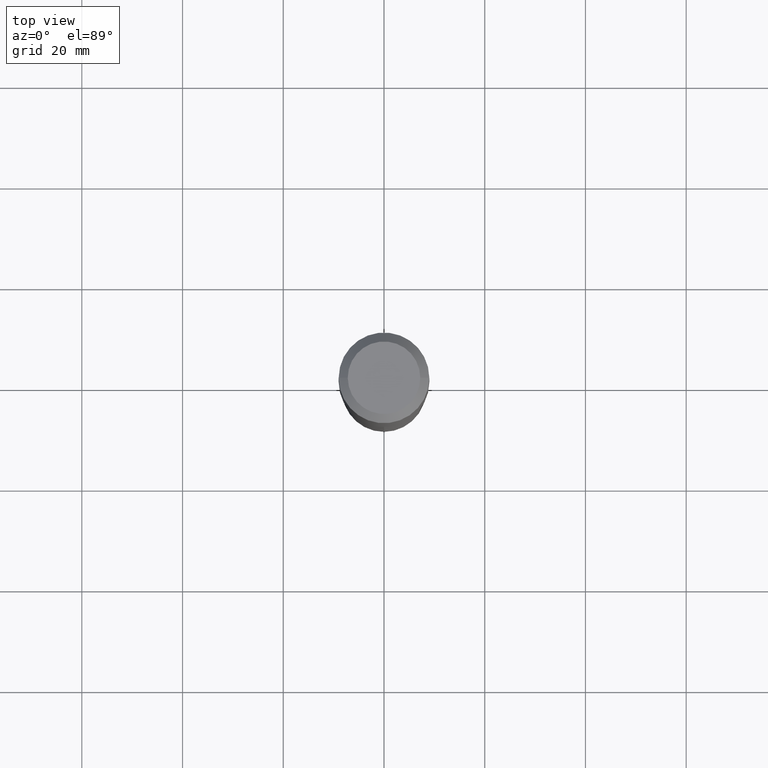
[diagram: clean part render]
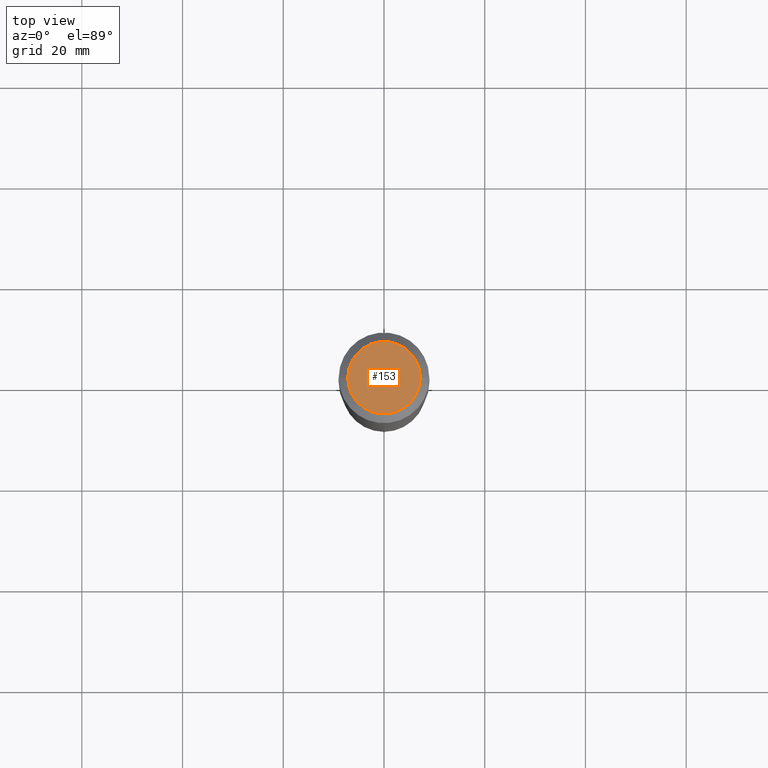
[diagram: same view with one face highlighted and labeled with its STEP entity id]
A machine part, top view. The second image highlights one B-rep face of the part: STEP entity #153.
In plain terms, the highlighted planar face has unit normal (0, -0, -1).
Its self-contained STEP definition (entity closure, byte-faithful):
#1 = FACE_OUTER_BOUND ( 'NONE', #313, .T. ) ;
#25 = CARTESIAN_POINT ( 'NONE',  ( -9.439721640706191963E-47, 1.347742071746725396E-32, 3.860086710912455110E-18 ) ) ;
#42 = VERTEX_POINT ( 'NONE', #215 ) ;
#56 = DIRECTION ( 'NONE',  ( -2.445468806185136597E-29, 3.491481338843145583E-15, 1.000000000000000000 ) ) ;
#59 = VERTEX_POINT ( 'NONE', #331 ) ;
#60 = AXIS2_PLACEMENT_3D ( 'NONE', #188, #110, #334 ) ;
#83 = DIRECTION ( 'NONE',  ( -2.445468806185136597E-29, 3.491481338843145583E-15, 1.000000000000000000 ) ) ;
#110 = DIRECTION ( 'NONE',  ( 2.438088387897960049E-29, -3.491481338843145188E-15, -1.000000000000000000 ) ) ;
#153 = ADVANCED_FACE ( 'NONE', ( #1 ), #154, .F. ) ;
#154 = PLANE ( 'NONE',  #60 ) ;
#167 = CIRCLE ( 'NONE', #481, 0.2834800000000000098 ) ;
#170 = DIRECTION ( 'NONE',  ( 1.000000000000000000, -6.982962677686266711E-15, 4.876249319814053138E-29 ) ) ;
#188 = CARTESIAN_POINT ( 'NONE',  ( -4.719860820353095981E-47, 6.738710358733626979E-33, 1.930043355456227555E-18 ) ) ;
#215 = CARTESIAN_POINT ( 'NONE',  ( 0.2834800000000000098, -2.311636360201216027E-15, 3.860086710927458874E-18 ) ) ;
#232 = CIRCLE ( 'NONE', #457, 0.2834800000000000098 ) ;
#242 = ORIENTED_EDGE ( 'NONE', *, *, #425, .T. ) ;
#250 = EDGE_CURVE ( 'NONE', #59, #42, #167, .T. ) ;
#280 = ORIENTED_EDGE ( 'NONE', *, *, #250, .T. ) ;
#313 = EDGE_LOOP ( 'NONE', ( #280, #242 ) ) ;
#331 = CARTESIAN_POINT ( 'NONE',  ( -0.2834800000000000098, 2.103250901112408108E-15, 3.860086710898179346E-18 ) ) ;
#334 = DIRECTION ( 'NONE',  ( -1.000000000000000000, 6.982962677686265922E-15, -4.876176775795935793E-29 ) ) ;
#417 = CARTESIAN_POINT ( 'NONE',  ( -9.439721640706191963E-47, 1.347742071746725396E-32, 3.860086710912455110E-18 ) ) ;
#425 = EDGE_CURVE ( 'NONE', #42, #59, #232, .T. ) ;
#436 = DIRECTION ( 'NONE',  ( 1.000000000000000000, -6.982962677686266711E-15, 4.876249319814053138E-29 ) ) ;
#457 = AXIS2_PLACEMENT_3D ( 'NONE', #25, #56, #436 ) ;
#481 = AXIS2_PLACEMENT_3D ( 'NONE', #417, #83, #170 ) ;